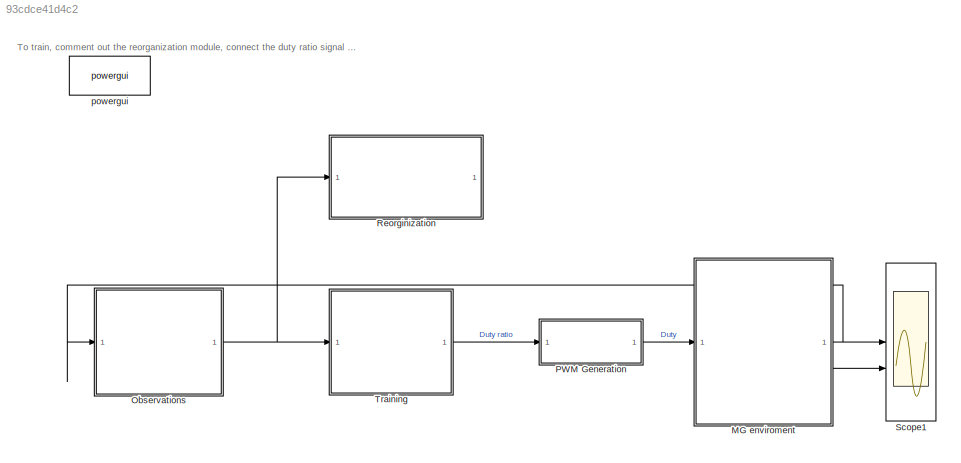
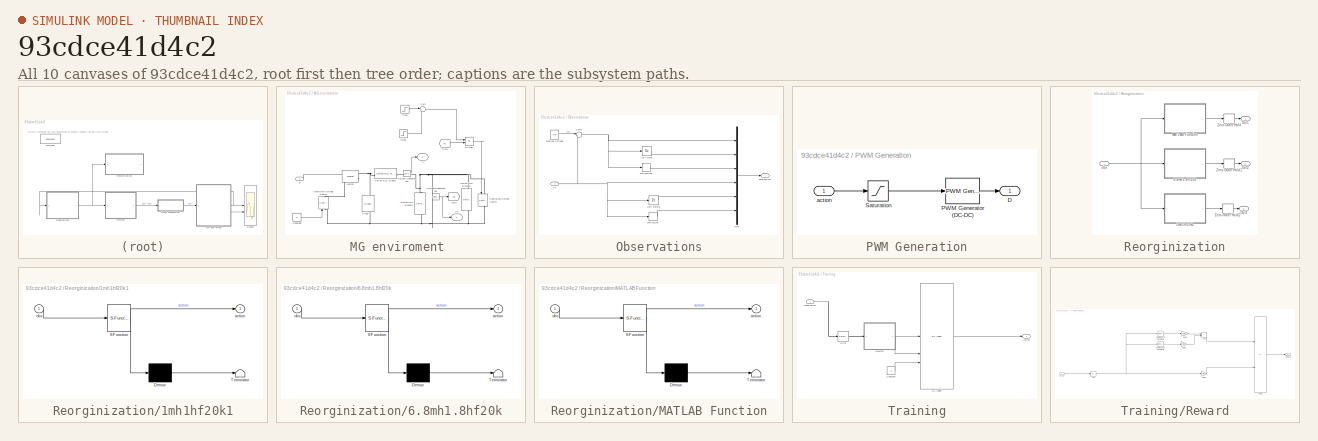
[diagram: thumbnail index - all 10 canvases of the model, root first then tree order]
MODEL slx_93cdce41d4c2
KIND model
CONFIG AbsTol = auto
CONFIG EnableMultiTasking = off
CONFIG FixedStep = 0.001
CONFIG MaxStep = auto
CONFIG MinStep = auto
CONFIG PostLoadFcn = , if any(exist('dsrtsu_mdlpostloadfcn', 'file') == [2, 3, 6]), try dsrtsu_mdlpostloadfcn('Execute', bdroot); catch fprintf('Error in PostLoadFcn (dsrtsu_mdlpostloadfcn) for model "%s":\n %s\n', bdroot, lasterr); end, end, \n
CONFIG RelTol = 1e-3
CONFIG SampleTimeConstraint = Unconstrained
CONFIG SolverName = VariableStepAuto
CONFIG StartTime = 0.0
CONFIG StopTime = 0.4
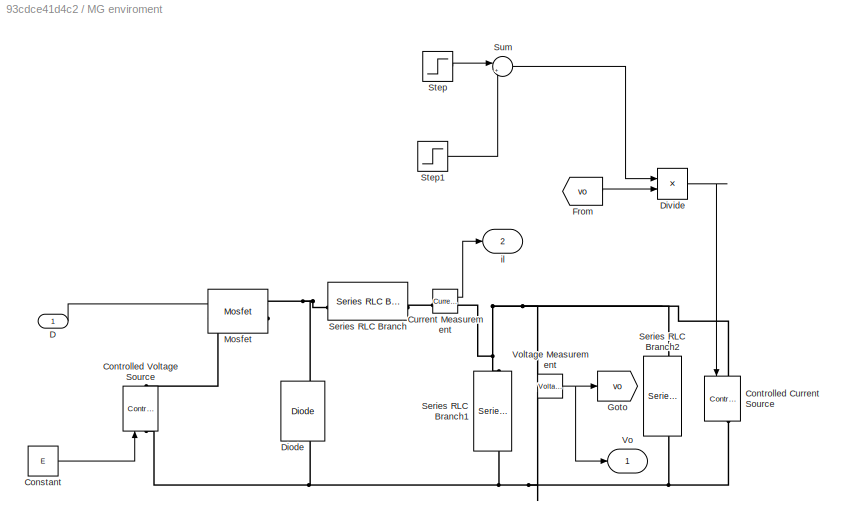
BLOCK [SubSystem] MG enviroment 
BLOCK [Constant] MG enviroment /Constant
  Value = E
BLOCK [Reference] MG enviroment /Controlled Current Source  REF=spsControlledCurrentSourceLib/Controlled Current Source
  NameLocation = left
  SourceBlock = spsControlledCurrentSourceLib/Controlled Current Source
  SourceType = Controlled Current Source
BLOCK [Reference] MG enviroment /Controlled Voltage Source  REF=spsControlledVoltageSourceLib/Controlled Voltage Source
  NameLocation = right
  SourceBlock = spsControlledVoltageSourceLib/Controlled Voltage Source
  SourceType = Controlled Voltage Source
BLOCK [Reference] MG enviroment /Current Measurement  REF=spsCurrentMeasurementLib/Current Measurement
  SourceBlock = spsCurrentMeasurementLib/Current Measurement
  SourceType = Current Measurement
  UserDataPersistent = on
BLOCK [Inport] MG enviroment /D
BLOCK [Reference] MG enviroment /Diode  REF=spsDiodeLib/Diode
  NameLocation = right
  SourceBlock = spsDiodeLib/Diode
  SourceType = Diode
BLOCK [Product] MG enviroment /Divide
  Inputs = */
BLOCK [From] MG enviroment /From
  GotoTag = vo
BLOCK [Goto] MG enviroment /Goto
  GotoTag = vo
BLOCK [Reference] MG enviroment /Mosfet  REF=spsMosfetLib/Mosfet
  NameLocation = top
  SourceBlock = spsMosfetLib/Mosfet
  SourceType = Mosfet
BLOCK [Reference] MG enviroment /Series RLC Branch  REF=spsSeriesRLCBranchLib/Series RLC Branch
  SourceBlock = spsSeriesRLCBranchLib/Series RLC Branch
  SourceType = Series RLC Branch
BLOCK [Reference] MG enviroment /Series RLC Branch1  REF=spsSeriesRLCBranchLib/Series RLC Branch
  NameLocation = left
  SourceBlock = spsSeriesRLCBranchLib/Series RLC Branch
  SourceType = Series RLC Branch
BLOCK [Reference] MG enviroment /Series RLC Branch2  REF=spsSeriesRLCBranchLib/Series RLC Branch
  NameLocation = left
  SourceBlock = spsSeriesRLCBranchLib/Series RLC Branch
  SourceType = Series RLC Branch
BLOCK [Step] MG enviroment /Step
  After = p2
  Before = p1
  SampleTime = 0
  Time = t1
BLOCK [Step] MG enviroment /Step1
  After = p1-p2
  SampleTime = 0
  Time = t2
BLOCK [Sum] MG enviroment /Sum
  Inputs = |++
BLOCK [Outport] MG enviroment /Vo
  VectorParamsAs1DForOutWhenUnconnected = off
BLOCK [Reference] MG enviroment /Voltage Measurement  REF=spsVoltageMeasurementLib/Voltage Measurement
  SourceBlock = spsVoltageMeasurementLib/Voltage Measurement
  SourceType = Voltage Measurement
  UserDataPersistent = on
BLOCK [Outport] MG enviroment /il
  Port = 2
  VectorParamsAs1DForOutWhenUnconnected = off
BLOCK [SubSystem] Observations
BLOCK [Derivative] Observations/Derivative
BLOCK [Derivative] Observations/Derivative1
BLOCK [Constant] Observations/Desired Voltage
  Value = Vref
BLOCK [Mux] Observations/Mux
  DisplayOption = bar
  Inputs = 6
BLOCK [Sum] Observations/Sum1
  Inputs = |+-
  SaturateOnIntegerOverflow = on
BLOCK [UnitDelay] Observations/Unit Delay
  HasFrameUpgradeWarning = on
  SampleTime = -1
BLOCK [UnitDelay] Observations/Unit Delay1
  HasFrameUpgradeWarning = on
  SampleTime = -1
BLOCK [Inport] Observations/Vo
  NameLocation = top
BLOCK [Outport] Observations/observations
  VectorParamsAs1DForOutWhenUnconnected = off
BLOCK [SubSystem] PWM Generation
BLOCK [Outport] PWM Generation/D
  VectorParamsAs1DForOutWhenUnconnected = off
BLOCK [Reference] PWM Generation/PWM Generator (DC-DC)  REF=spsPWMGeneratorDCDCLib/PWM Generator
(DC-DC)
  SourceBlock = spsPWMGeneratorDCDCLib/PWM Generator\n(DC-DC)
  SourceType = PWM Generator (DC-DC)
BLOCK [Saturate] PWM Generation/Saturation
  LowerLimit = 0.01
  UpperLimit = 0.99
BLOCK [Inport] PWM Generation/action
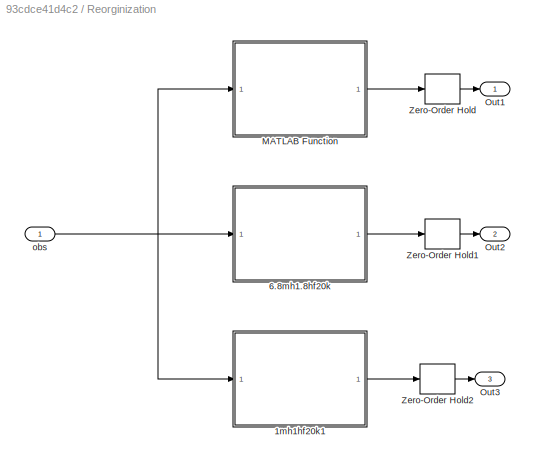
BLOCK [SubSystem] Reorginization
  Commented = on
BLOCK [SubSystem] Reorginization/1mh1hf20k1
  ErrorFcn = Stateflow.Translate.translate
  PermitHierarchicalResolution = ExplicitOnly
  SFBlockType = MATLAB Function
  TreatAsAtomicUnit = on
BLOCK [Demux] Reorginization/1mh1hf20k1/ Demux 
  Outputs = 1
BLOCK [S-Function] Reorginization/1mh1hf20k1/ SFunction 
  EnableBusSupport = on
  FunctionName = sf_sfun
  PortCounts = [1 2]
  SFcnIsStateOwnerBlock = off
  SFunctionDeploymentMode = off
  Tag = Stateflow S-Function 3
BLOCK [Terminator] Reorginization/1mh1hf20k1/ Terminator 
BLOCK [Outport] Reorginization/1mh1hf20k1/action
BLOCK [Inport] Reorginization/1mh1hf20k1/obs
BLOCK [SubSystem] Reorginization/6.8mh1.8hf20k
  Commented = on
  ErrorFcn = Stateflow.Translate.translate
  PermitHierarchicalResolution = ExplicitOnly
  SFBlockType = MATLAB Function
  TreatAsAtomicUnit = on
BLOCK [Demux] Reorginization/6.8mh1.8hf20k/ Demux 
  Outputs = 1
BLOCK [S-Function] Reorginization/6.8mh1.8hf20k/ SFunction 
  EnableBusSupport = on
  FunctionName = sf_sfun
  PortCounts = [1 2]
  SFcnIsStateOwnerBlock = off
  SFunctionDeploymentMode = off
  Tag = Stateflow S-Function 1
BLOCK [Terminator] Reorginization/6.8mh1.8hf20k/ Terminator 
BLOCK [Outport] Reorginization/6.8mh1.8hf20k/action
BLOCK [Inport] Reorginization/6.8mh1.8hf20k/obs
BLOCK [SubSystem] Reorginization/MATLAB Function
  Commented = on
  ErrorFcn = Stateflow.Translate.translate
  PermitHierarchicalResolution = ExplicitOnly
  SFBlockType = MATLAB Function
  TreatAsAtomicUnit = on
BLOCK [Demux] Reorginization/MATLAB Function/ Demux 
  Outputs = 1
BLOCK [S-Function] Reorginization/MATLAB Function/ SFunction 
  EnableBusSupport = on
  FunctionName = sf_sfun
  PortCounts = [1 2]
  SFcnIsStateOwnerBlock = off
  SFunctionDeploymentMode = off
  Tag = Stateflow S-Function 2
BLOCK [Terminator] Reorginization/MATLAB Function/ Terminator 
BLOCK [Outport] Reorginization/MATLAB Function/action
BLOCK [Inport] Reorginization/MATLAB Function/obs
BLOCK [Outport] Reorginization/Out1
BLOCK [Outport] Reorginization/Out2
  Port = 2
BLOCK [Outport] Reorginization/Out3
  Port = 3
BLOCK [ZeroOrderHold] Reorginization/Zero-Order Hold
  Commented = on
  SampleTime = 1/20000
BLOCK [ZeroOrderHold] Reorginization/Zero-Order Hold1
  Commented = on
  SampleTime = 1/20000
BLOCK [ZeroOrderHold] Reorginization/Zero-Order Hold2
  SampleTime = 1/20000
BLOCK [Inport] Reorginization/obs
BLOCK [Scope] Scope1
  Floating = off
  NumInputPorts = 2
  ScopeSpecificationString = Simulink.scopes.TimeScopeBlockCfg('CurrentConfiguration', extmgr.ConfigurationSet(extmgr.Configuration('Core','General UI',true),extmgr.Configuration('Core','Source UI',true),extmgr.Configuration('Sources','WiredSimulink',true,'DataLoggingVariableName','buck_final','DataLogging',true,'DataLoggingSaveFormat','StructureWithTime'),extmgr.Configuration('Visuals','Time Domain',true,'SerializedDisplays'...<+2197ch>
BLOCK [SubSystem] Training
BLOCK [Outport] Training/Action
BLOCK [Constant] Training/Constant
  Value = 0
BLOCK [Selector] Training/Error
  IndexOptions = Index vector (dialog)
  Indices = [1]
  InputPortWidth = 6
  OutputSizes = 1
BLOCK [Inport] Training/Observation
BLOCK [Reference] Training/RL Agent  REF=rllib/RL Agent
  SourceBlock = rllib/RL Agent
  SourceType = RL Agent
BLOCK [SubSystem] Training/Reward
BLOCK [Abs] Training/Reward/Abs
  SaturateOnIntegerOverflow = off
BLOCK [Sum] Training/Reward/Add
  IconShape = rectangular
BLOCK [Reference] Training/Reward/Compare To Constant1  REF=simulink/Logic and Bit
Operations/Compare
To Constant
  SourceBlock = simulink/Logic and Bit\nOperations/Compare\nTo Constant
  SourceType = Compare To Constant
BLOCK [Reference] Training/Reward/Compare To Constant2  REF=simulink/Logic and Bit
Operations/Compare
To Constant
  SourceBlock = simulink/Logic and Bit\nOperations/Compare\nTo Constant
  SourceType = Compare To Constant
BLOCK [Gain] Training/Reward/Gain1
  Gain = beta2
BLOCK [Gain] Training/Reward/Gain3
  Gain = beta1
BLOCK [Gain] Training/Reward/Gain5
  Gain = beta3
BLOCK [Sum] Training/Reward/Sum1
  IconShape = rectangular
  Inputs = +-
  OutDataTypeStr = double
BLOCK [Inport] Training/Reward/error
BLOCK [Outport] Training/Reward/reward
  VectorParamsAs1DForOutWhenUnconnected = off
BLOCK [Reference] powergui  REF=spspowerguiLib/powergui
  Priority = 1
  SourceBlock = spspowerguiLib/powergui
  SourceType = PSB option menu block
ANNOTATION (root): To train, comment out the reorganization module, connect the duty ratio signal to Training , and use the reorganization module after extracting the network.
LINE MG enviroment /Constant:1 -> MG enviroment /Controlled Voltage Source:1
LINE MG enviroment /Current Measurement:1 -> MG enviroment /il:1
LINE MG enviroment /D:1 -> MG enviroment /Mosfet:1
LINE MG enviroment /Divide:1 -> MG enviroment /Controlled Current Source:1
LINE MG enviroment /From:1 -> MG enviroment /Divide:2
LINE MG enviroment /Step1:1 -> MG enviroment /Sum:2
LINE MG enviroment /Step:1 -> MG enviroment /Sum:1
LINE MG enviroment /Sum:1 -> MG enviroment /Divide:1
NET MG enviroment /Voltage Measurement:1 -> MG enviroment /Goto:1, MG enviroment /Vo:1
NET MG enviroment :1 -> Observations:1, Scope1:1
LINE MG enviroment :2 -> Scope1:2
LINE Observations/Derivative1:1 -> Observations/Mux:3
LINE Observations/Derivative:1 -> Observations/Mux:6
LINE Observations/Desired Voltage:1 -> Observations/Sum1:1
LINE Observations/Mux:1 -> Observations/observations:1
NET Observations/Sum1:1 -> Observations/Derivative1:1, Observations/Mux:1, Observations/Unit Delay:1
LINE Observations/Unit Delay1:1 -> Observations/Mux:5
LINE Observations/Unit Delay:1 -> Observations/Mux:2
NET Observations/Vo:1 -> Observations/Derivative:1, Observations/Mux:4, Observations/Sum1:2, Observations/Unit Delay1:1
NET Observations:1 -> Reorginization:1, Training:1
LINE PWM Generation/PWM Generator (DC-DC):1 -> PWM Generation/D:1
LINE PWM Generation/Saturation:1 -> PWM Generation/PWM Generator (DC-DC):1
LINE PWM Generation/action:1 -> PWM Generation/Saturation:1
LINE PWM Generation:1 -> MG enviroment :1
LINE Reorginization/1mh1hf20k1:1 -> Reorginization/Zero-Order Hold2:1
LINE Reorginization/6.8mh1.8hf20k:1 -> Reorginization/Zero-Order Hold1:1
LINE Reorginization/MATLAB Function:1 -> Reorginization/Zero-Order Hold:1
LINE Reorginization/Zero-Order Hold1:1 -> Reorginization/Out2:1
LINE Reorginization/Zero-Order Hold2:1 -> Reorginization/Out3:1
LINE Reorginization/Zero-Order Hold:1 -> Reorginization/Out1:1
NET Reorginization/obs:1 -> Reorginization/1mh1hf20k1:1, Reorginization/6.8mh1.8hf20k:1, Reorginization/MATLAB Function:1
LINE Training/Constant:1 -> Training/RL Agent:3
LINE Training/Error:1 -> Training/Reward:1
NET Training/Observation:1 -> Training/Error:1, Training/RL Agent:1
LINE Training/RL Agent:1 -> Training/Action:1
NET Training/Reward/Abs:1 -> Training/Reward/Compare To Constant1:1, Training/Reward/Compare To Constant2:1, Training/Reward/Gain5:1
LINE Training/Reward/Add:1 -> Training/Reward/Sum1:1
LINE Training/Reward/Compare To Constant1:1 -> Training/Reward/Gain3:1
LINE Training/Reward/Compare To Constant2:1 -> Training/Reward/Gain1:1
LINE Training/Reward/Gain1:1 -> Training/Reward/Add:2
LINE Training/Reward/Gain3:1 -> Training/Reward/Add:1
LINE Training/Reward/Gain5:1 -> Training/Reward/Sum1:2
LINE Training/Reward/Sum1:1 -> Training/Reward/reward:1
LINE Training/Reward/error:1 -> Training/Reward/Abs:1
LINE Training/Reward:1 -> Training/RL Agent:2
LINE Training:1 -> PWM Generation:1
PNET net1: MG enviroment /Controlled Current Source:LConn1 -- MG enviroment /Current Measurement:RConn1 -- MG enviroment /Series RLC Branch1:LConn1 -- MG enviroment /Series RLC Branch2:LConn1 -- MG enviroment /Voltage Measurement:LConn1
PNET net2: MG enviroment /Controlled Current Source:RConn1 -- MG enviroment /Controlled Voltage Source:LConn1 -- MG enviroment /Diode:LConn1 -- MG enviroment /Series RLC Branch1:RConn1 -- MG enviroment /Series RLC Branch2:RConn1 -- MG enviroment /Voltage Measurement:LConn2
PLINE MG enviroment /Controlled Voltage Source:RConn1 -- MG enviroment /Mosfet:LConn1
PLINE MG enviroment /Current Measurement:LConn1 -- MG enviroment /Series RLC Branch:RConn1
PNET net3: MG enviroment /Diode:RConn1 -- MG enviroment /Mosfet:RConn1 -- MG enviroment /Series RLC Branch:LConn1
note: NET lines group one-source signal fan-out (src -> all destinations, sorted); 1:1 wires keep LINE; PNET lines group multi-terminal physical nets as a canonical sorted terminal list (undirected conserving connections); 2-terminal nets keep the pairwise PLINE form
CHART Reorginization/MATLAB Function states=1 transitions=1
  STATE_LABEL 'eML_blk_kernel()'
  STATE_LABEL 'SCRIPT:\nfunction action = RLInference(obs)\nW1 = [0.066938639,0.066804036,-0.13333005,-0.12076974,-0.11297492,-0.13651904;0.063942052,0.064108774,0.059746251,0.25365081,-0.51855224,0.050533459;-0.00091686606,-0.00072082831,0.051824193,-0.029371638,-0.027409162,0.051227719;-0.75057733,-1.1882813,0.19018754,-0.38000277,-0.053273119,0.22787029;0.052086074,0.038876120,-0.21558014,0.46261823,-0.72194499...<+3608ch>'
CHART Reorginization/1mh1hf20k1 states=1 transitions=1
  STATE_LABEL 'eML_blk_kernel()'
  STATE_LABEL 'SCRIPT:\nfunction action = RLInference(obs)\nW1 = [0.47411132,0.48765868,-0.16579145,-0.32852331,-0.26730824,-0.16503251;9.3947554,9.4187317,0.057613052,0.070572376,-0.10087588,0.054228768;0.059764750,0.079413757,0.076187946,-0.12615022,-0.13696484,0.076158620;1.7693853,1.3685369,0.20886701,-0.49281669,-0.13571954,0.20917140;-3.5287499,-3.8303652,-0.26703918,0.89445901,0.50708753,-0.17661516;0.03008...<+3608ch>'
CHART Reorginization/6.8mh1.8hf20k states=1 transitions=1
  STATE_LABEL 'eML_blk_kernel()'
  STATE_LABEL 'SCRIPT:\nfunction action = RLInference(obs)\nW1 = [0.066938639,0.066804036,-0.13333005,-0.12076974,-0.11297492,-0.13651904;0.063942052,0.064108774,0.059746251,0.25365081,-0.51855224,0.050533459;-0.00091686606,-0.00072082831,0.051824193,-0.029371638,-0.027409162,0.051227719;-0.75057733,-1.1882813,0.19018754,-0.38000277,-0.053273119,0.22787029;0.052086074,0.038876120,-0.21558014,0.46261823,-0.72194499...<+3608ch>'
CHART  states=0 transitions=0
CHART  states=0 transitions=0
CHART  states=0 transitions=0
